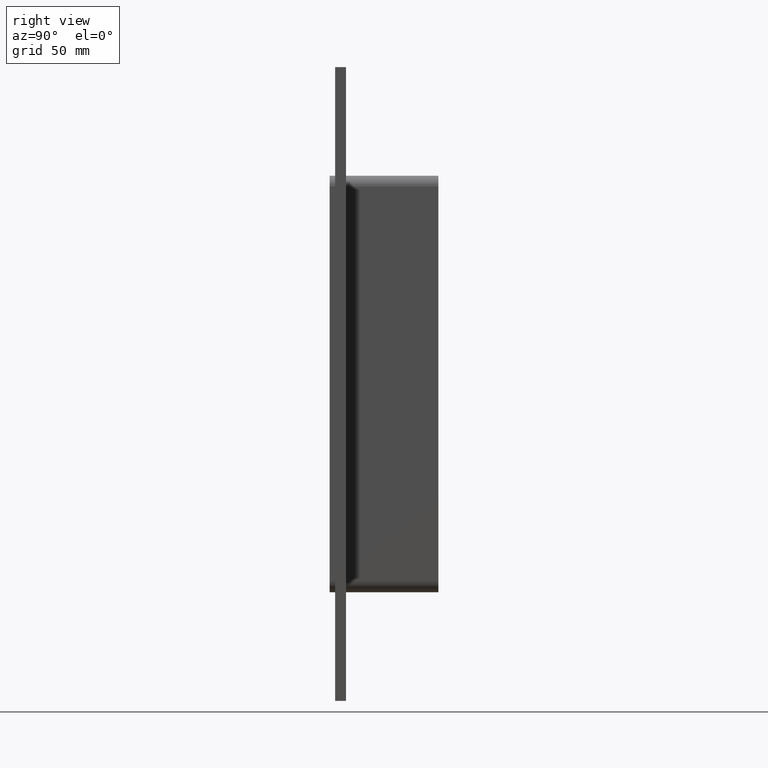
[diagram: clean part render]
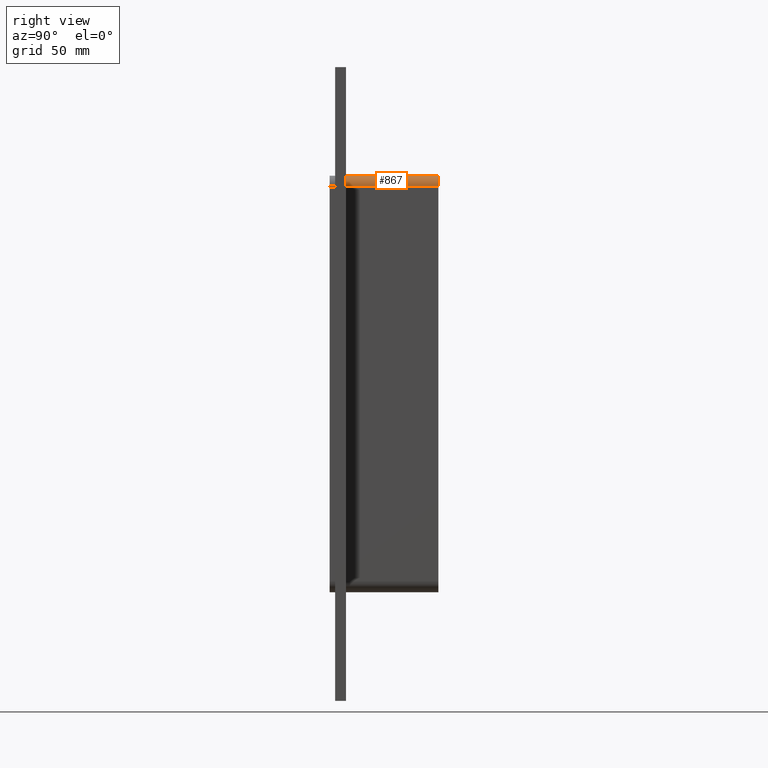
[diagram: same view with one face highlighted and labeled with its STEP entity id]
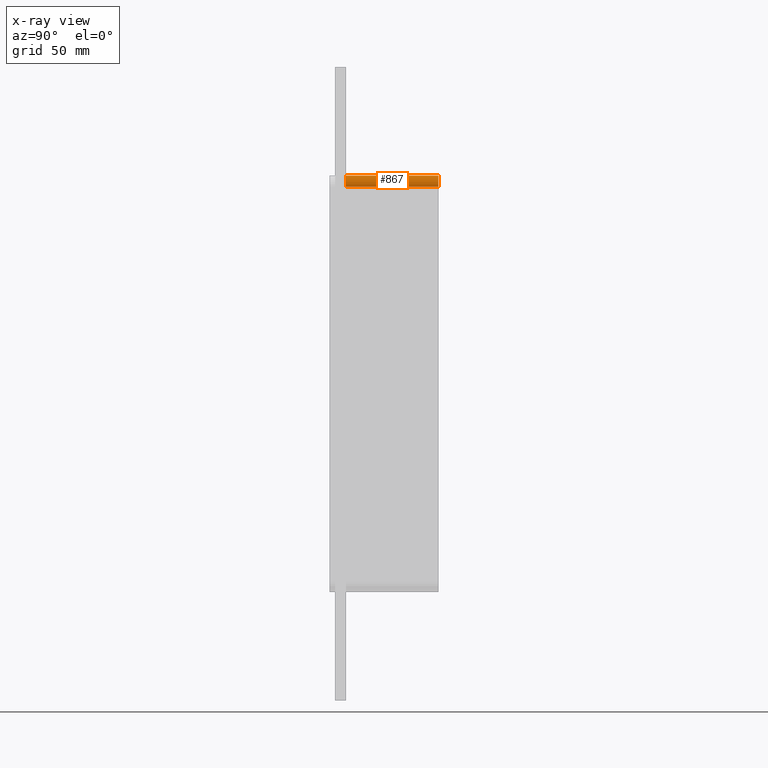
[diagram: x-ray of the same camera — body ghosted, the highlighted face saturated]
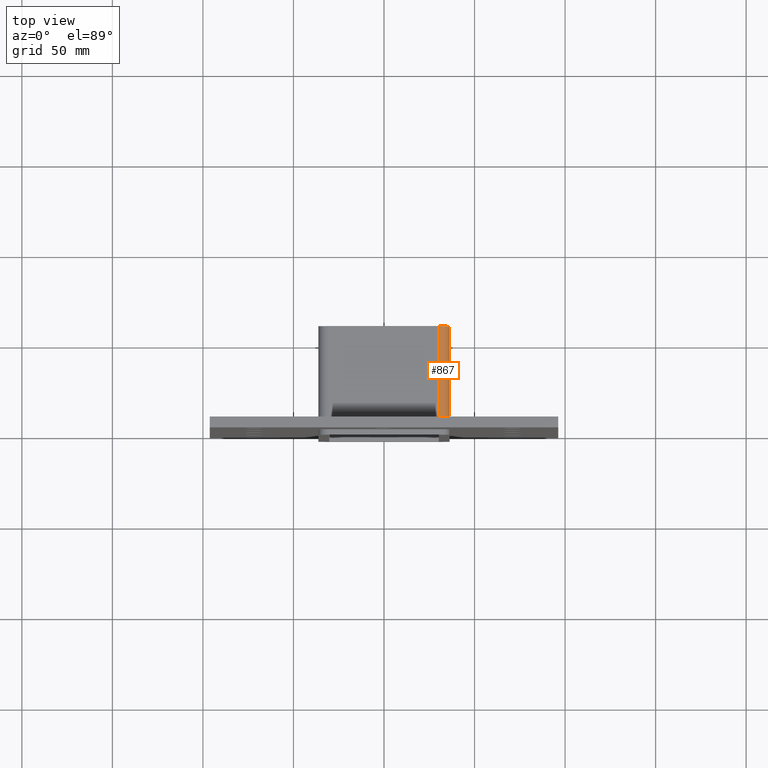
[diagram: same view with one face highlighted and labeled with its STEP entity id]
A machine part, right view. The second image highlights one B-rep face of the part: STEP entity #867.
The next image is the same camera in x-ray: the body ghosted, the highlighted face saturated — about 0% of this face is hidden behind the body in this view.
A second angle (top view) of the same face is appended — the face is thin or edge-on in the first view.
In plain terms, the highlighted cylindrical surface (edge-blend (fillet) strip) has radius 6 mm, axis along (0, -1, 0).
Its self-contained STEP definition (entity closure, byte-faithful):
#507=CARTESIAN_POINT('',(36.250000000000007,6.000000000000001,109.0));
#508=VERTEX_POINT('',#507);
#515=CARTESIAN_POINT('',(30.250000000000004,6.000000000000001,115.0));
#516=VERTEX_POINT('',#515);
#517=CARTESIAN_POINT('',(30.250000000000004,6.000000000000001,109.0));
#518=DIRECTION('',(0.0,1.0,0.0));
#519=DIRECTION('',(0.707106781186548,0.0,0.707106781186547));
#520=AXIS2_PLACEMENT_3D('',#517,#518,#519);
#521=CIRCLE('',#520,6.0);
#522=EDGE_CURVE('',#516,#508,#521,.T.);
#836=CARTESIAN_POINT('',(30.250000000000004,0.0,109.0));
#837=DIRECTION('',(0.0,-1.0,0.0));
#838=DIRECTION('',(0.707106781186548,0.0,0.707106781186547));
#839=AXIS2_PLACEMENT_3D('',#836,#837,#838);
#840=CYLINDRICAL_SURFACE('',#839,6.0);
#841=ORIENTED_EDGE('',*,*,#522,.T.);
#842=CARTESIAN_POINT('',(36.250000000000007,57.0,109.0));
#843=VERTEX_POINT('',#842);
#844=CARTESIAN_POINT('',(36.250000000000007,6.000000000000001,109.0));
#845=DIRECTION('',(0.0,1.0,0.0));
#846=VECTOR('',#845,51.0);
#847=LINE('',#844,#846);
#848=EDGE_CURVE('',#508,#843,#847,.T.);
#849=ORIENTED_EDGE('',*,*,#848,.T.);
#850=CARTESIAN_POINT('',(30.25,57.0,115.0));
#851=VERTEX_POINT('',#850);
#852=CARTESIAN_POINT('',(30.250000000000004,57.0,109.0));
#853=DIRECTION('',(0.0,-1.0,0.0));
#854=DIRECTION('',(0.707106781186548,0.0,0.707106781186547));
#855=AXIS2_PLACEMENT_3D('',#852,#853,#854);
#856=CIRCLE('',#855,6.0);
#857=EDGE_CURVE('',#843,#851,#856,.T.);
#858=ORIENTED_EDGE('',*,*,#857,.T.);
#859=CARTESIAN_POINT('',(30.250000000000004,57.0,115.0));
#860=DIRECTION('',(0.0,-1.0,0.0));
#861=VECTOR('',#860,51.0);
#862=LINE('',#859,#861);
#863=EDGE_CURVE('',#851,#516,#862,.T.);
#864=ORIENTED_EDGE('',*,*,#863,.T.);
#865=EDGE_LOOP('',(#841,#849,#858,#864));
#866=FACE_OUTER_BOUND('',#865,.T.);
#867=ADVANCED_FACE('',(#866),#840,.T.);